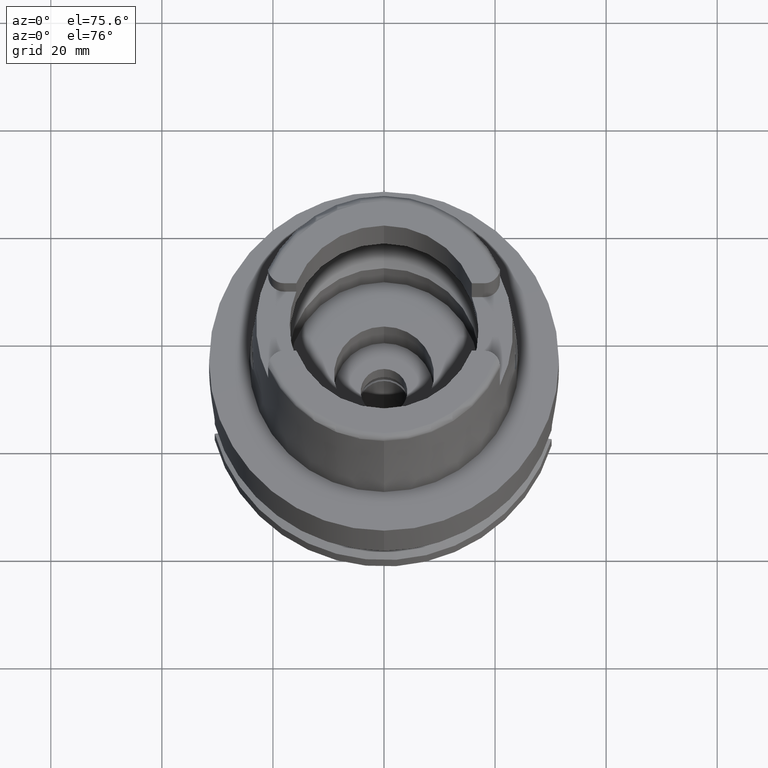
[diagram: clean part render]
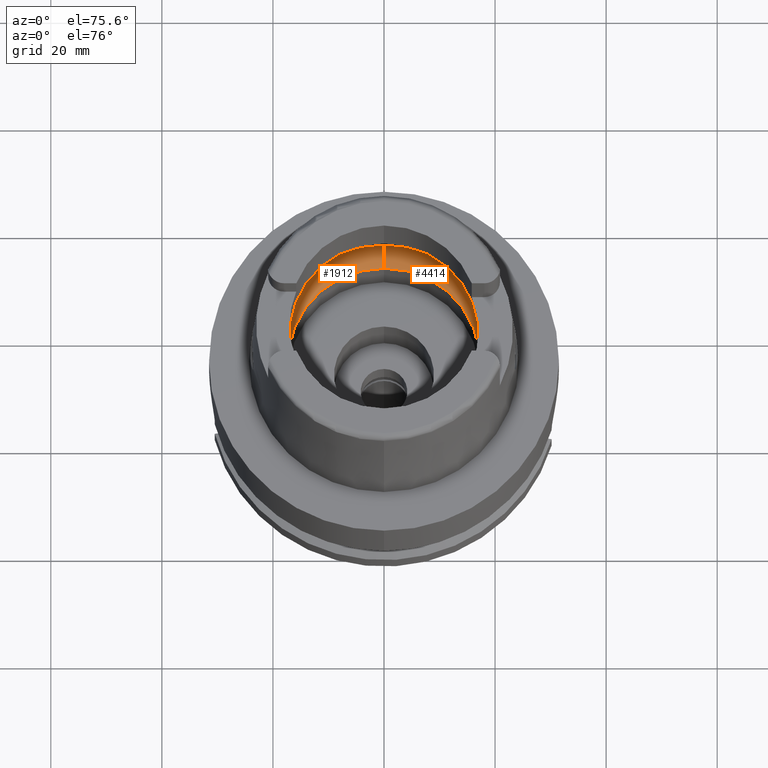
[diagram: same view with one multi-face feature highlighted, each face labeled with its STEP entity id]
A machine part, auxiliary view. The highlighted faces form ONE feature: a constant-radius fillet chain: 2 tangent blend faces with common blend radius 8 mm. The faces share edges in the B-rep.
Their STEP definitions:
[1] entity #1912 (Torus):
#50 = CARTESIAN_POINT ( 'NONE',  ( -19.90056925889987127, -1.871018165099524122, 5.748162139564427342 ) ) ;
#74 = CARTESIAN_POINT ( 'NONE',  ( -19.84575864665999845, -2.479085262491000030, 6.186348233825000875 ) ) ;
#262 = CARTESIAN_POINT ( 'NONE',  ( -19.93655272268687639, 0.9259470818443067408, 5.364515645285496959 ) ) ;
#291 = CIRCLE ( 'NONE', #4675, 7.999999999999992895 ) ;
#303 = CARTESIAN_POINT ( 'NONE',  ( -19.92591906827003001, 1.321585501799986462, 5.490587994735173893 ) ) ;
#394 = ORIENTED_EDGE ( 'NONE', *, *, #1679, .T. ) ;
#401 = CARTESIAN_POINT ( 'NONE',  ( 0.0000000000000000000, 0.0000000000000000000, 6.186348233825000875 ) ) ;
#471 = CARTESIAN_POINT ( 'NONE',  ( -19.94501428475999916, 0.0000000000000000000, 5.250000000000000000 ) ) ;
#530 = VERTEX_POINT ( 'NONE', #2632 ) ;
#535 = CARTESIAN_POINT ( 'NONE',  ( 0.0000000000000000000, 0.0000000000000000000, 6.186348233825000875 ) ) ;
#574 = CIRCLE ( 'NONE', #1020, 20.00000000000001421 ) ;
#698 = CARTESIAN_POINT ( 'NONE',  ( -19.94501428475999916, 0.2479290550739760568, 5.249999999999999112 ) ) ;
#861 = DIRECTION ( 'NONE',  ( 0.0000000000000000000, 1.000000000000000000, 0.0000000000000000000 ) ) ;
#873 = CARTESIAN_POINT ( 'NONE',  ( -19.88059042415784816, -2.158397635262351066, 5.925190505596781065 ) ) ;
#885 = CARTESIAN_POINT ( 'NONE',  ( 0.0000000000000000000, 0.0000000000000000000, 0.1500000000000999700 ) ) ;
#899 = CARTESIAN_POINT ( 'NONE',  ( -19.94501428475999916, -0.4959087842382808309, 5.249999999999998224 ) ) ;
#912 = DIRECTION ( 'NONE',  ( 0.0000000000000000000, -0.6562500000000006661, -0.7545435292281016393 ) ) ;
#954 = CARTESIAN_POINT ( 'NONE',  ( -19.84575864665999845, -2.479085262491000030, 6.186348233825000875 ) ) ;
#979 = CARTESIAN_POINT ( 'NONE',  ( -19.91448717745985775, -1.610408095139941542, 5.612876396282293179 ) ) ;
#1020 = AXIS2_PLACEMENT_3D ( 'NONE', #4055, #3157, #1061 ) ;
#1061 = DIRECTION ( 'NONE',  ( -0.9922879323327794543, 0.1239542631244973381, 0.0000000000000000000 ) ) ;
#1246 = VERTEX_POINT ( 'NONE', #3552 ) ;
#1363 = DIRECTION ( 'NONE',  ( 0.0000000000000000000, 1.000000000000000000, 0.0000000000000000000 ) ) ;
#1381 = CARTESIAN_POINT ( 'NONE',  ( -19.92391792695806529, -1.379670552742549017, 5.512962522875360705 ) ) ;
#1403 = VERTEX_POINT ( 'NONE', #3993 ) ;
#1421 = VERTEX_POINT ( 'NONE', #4489 ) ;
#1495 = CARTESIAN_POINT ( 'NONE',  ( -19.92607492902601507, 1.316891584246879576, 5.488826718527257675 ) ) ;
#1520 = CARTESIAN_POINT ( 'NONE',  ( -19.84575864665999845, 2.479085262489999941, 6.186348233825000875 ) ) ;
#1609 = CARTESIAN_POINT ( 'NONE',  ( 0.0000000000000000000, 12.00000000000000000, 6.186348233825000875 ) ) ;
#1625 = CARTESIAN_POINT ( 'NONE',  ( 0.0000000000000000000, 20.00000000000000000, 6.186348233825000875 ) ) ;
#1679 = EDGE_CURVE ( 'NONE', #3162, #4016, #4909, .T. ) ;
#1731 = DIRECTION ( 'NONE',  ( 1.000000000000000000, 0.0000000000000000000, 0.0000000000000000000 ) ) ;
#1780 = CARTESIAN_POINT ( 'NONE',  ( -19.86454009060478398, -2.328734643576319652, 6.053875549024845704 ) ) ;
#1823 = AXIS2_PLACEMENT_3D ( 'NONE', #401, #3874, #3460 ) ;
#1835 = CIRCLE ( 'NONE', #2014, 17.25000000000000000 ) ;
#1912 = ADVANCED_FACE ( 'NONE', ( #4457 ), #4914, .F. ) ;
#2000 = CARTESIAN_POINT ( 'NONE',  ( -19.93292633894125032, 1.081457122330341747, 5.408919853929954336 ) ) ;
#2004 = ORIENTED_EDGE ( 'NONE', *, *, #4480, .F. ) ;
#2010 = CARTESIAN_POINT ( 'NONE',  ( -19.92840595086944688, 1.244192535815689116, 5.462252019518305524 ) ) ;
#2014 = AXIS2_PLACEMENT_3D ( 'NONE', #885, #5629, #861 ) ;
#2098 = EDGE_CURVE ( 'NONE', #2209, #1403, #2726, .T. ) ;
#2209 = VERTEX_POINT ( 'NONE', #954 ) ;
#2214 = CARTESIAN_POINT ( 'NONE',  ( -19.92518025587951058, -1.343452463015866627, 5.498900748199903710 ) ) ;
#2420 = CARTESIAN_POINT ( 'NONE',  ( -19.94340255865083833, 0.4848947565498933909, 5.274596189388688572 ) ) ;
#2435 = EDGE_CURVE ( 'NONE', #1403, #530, #5597, .T. ) ;
#2632 = CARTESIAN_POINT ( 'NONE',  ( -19.84575864665999845, 2.479085262489999941, 6.186348233825000875 ) ) ;
#2686 = ORIENTED_EDGE ( 'NONE', *, *, #2098, .F. ) ;
#2726 = B_SPLINE_CURVE_WITH_KNOTS ( 'NONE', 3,
 ( #74, #1780, #873, #50, #4787, #979, #4360, #4837, #1381, #4394, #2214, #3103, #3533, #899, #471 ),
 .UNSPECIFIED., .F., .F.,
 ( 4, 2, 2, 1, 1, 1, 2, 2, 4 ),
 ( 0.0000000000000000000, 0.2499999999999957812, 0.3749999999999935607, 0.4374999999999926725, 0.4687499999999921729, 0.4843749999999920064, 0.4921874999999919509, 0.4999999999999920064, 1.000000000000000000 ),
 .UNSPECIFIED. ) ;
#3103 = CARTESIAN_POINT ( 'NONE',  ( -19.92547252417883641, -1.334867513091082314, 5.495621353218018257 ) ) ;
#3157 = DIRECTION ( 'NONE',  ( 0.0000000000000000000, 0.0000000000000000000, -1.000000000000000000 ) ) ;
#3162 = VERTEX_POINT ( 'NONE', #3764 ) ;
#3283 = ORIENTED_EDGE ( 'NONE', *, *, #4924, .F. ) ;
#3294 = EDGE_LOOP ( 'NONE', ( #3461, #2004, #4304, #394, #3283, #4295, #2686 ) ) ;
#3329 = CARTESIAN_POINT ( 'NONE',  ( -19.94501428475999916, 0.0000000000000000000, 5.250000000000000000 ) ) ;
#3460 = DIRECTION ( 'NONE',  ( 0.0000000000000000000, -1.000000000000000000, 0.0000000000000000000 ) ) ;
#3461 = ORIENTED_EDGE ( 'NONE', *, *, #3463, .F. ) ;
#3463 = EDGE_CURVE ( 'NONE', #1421, #2209, #4099, .T. ) ;
#3533 = CARTESIAN_POINT ( 'NONE',  ( -19.93856751838270824, -0.9457802407118157673, 5.348172554885747054 ) ) ;
#3541 = DIRECTION ( 'NONE',  ( 0.0000000000000000000, 0.0000000000000000000, 1.000000000000000000 ) ) ;
#3552 = CARTESIAN_POINT ( 'NONE',  ( 0.0000000000000000000, -17.25000000000000000, 0.1500000000000999700 ) ) ;
#3693 = CARTESIAN_POINT ( 'NONE',  ( 0.0000000000000000000, -12.00000000000000000, 6.186348233825000875 ) ) ;
#3746 = CARTESIAN_POINT ( 'NONE',  ( -19.93096204774570879, 1.157762075072081620, 5.432521242665883321 ) ) ;
#3764 = CARTESIAN_POINT ( 'NONE',  ( 0.0000000000000000000, 17.25000000000000000, 0.1500000000000999700 ) ) ;
#3874 = DIRECTION ( 'NONE',  ( 0.0000000000000000000, 0.0000000000000000000, -1.000000000000000000 ) ) ;
#3993 = CARTESIAN_POINT ( 'NONE',  ( -19.94501428475999916, 0.0000000000000000000, 5.250000000000000000 ) ) ;
#4016 = VERTEX_POINT ( 'NONE', #1625 ) ;
#4055 = CARTESIAN_POINT ( 'NONE',  ( 0.0000000000000000000, 0.0000000000000000000, 6.186348233825000875 ) ) ;
#4089 = CARTESIAN_POINT ( 'NONE',  ( -19.92647156474819425, 1.304855687904770578, 5.484336066838738866 ) ) ;
#4099 = CIRCLE ( 'NONE', #1823, 20.00000000000000000 ) ;
#4168 = CARTESIAN_POINT ( 'NONE',  ( -19.93856738032333809, 0.8183990517462441661, 5.338642722792194206 ) ) ;
#4295 = ORIENTED_EDGE ( 'NONE', *, *, #2435, .F. ) ;
#4298 = EDGE_CURVE ( 'NONE', #3162, #1246, #1835, .T. ) ;
#4304 = ORIENTED_EDGE ( 'NONE', *, *, #4298, .F. ) ;
#4360 = CARTESIAN_POINT ( 'NONE',  ( -19.91820167814924503, -1.528670811425639542, 5.574773783465068355 ) ) ;
#4394 = CARTESIAN_POINT ( 'NONE',  ( -19.92467852483092017, -1.357963622241911139, 5.504503570019525505 ) ) ;
#4408 = DIRECTION ( 'NONE',  ( -1.000000000000000000, 0.0000000000000000000, 0.0000000000000000000 ) ) ;
#4457 = FACE_OUTER_BOUND ( 'NONE', #3294, .T. ) ;
#4467 = AXIS2_PLACEMENT_3D ( 'NONE', #535, #3541, #1363 ) ;
#4480 = EDGE_CURVE ( 'NONE', #1246, #1421, #291, .T. ) ;
#4489 = CARTESIAN_POINT ( 'NONE',  ( 0.0000000000000000000, -20.00000000000000000, 6.186348233825000875 ) ) ;
#4618 = CARTESIAN_POINT ( 'NONE',  ( -19.90996177496829489, 1.795767083468379210, 5.670284047755099088 ) ) ;
#4675 = AXIS2_PLACEMENT_3D ( 'NONE', #3693, #4408, #912 ) ;
#4787 = CARTESIAN_POINT ( 'NONE',  ( -19.90654609288262122, -1.769936306168619966, 5.691842260241858575 ) ) ;
#4837 = CARTESIAN_POINT ( 'NONE',  ( -19.92208718948823076, -1.429900174883156350, 5.533077591732342704 ) ) ;
#4909 = CIRCLE ( 'NONE', #5091, 7.999999999999992895 ) ;
#4914 = TOROIDAL_SURFACE ( 'NONE', #4467, 12.00000000000000000, 8.000000000000000000 ) ;
#4924 = EDGE_CURVE ( 'NONE', #530, #4016, #574, .T. ) ;
#4988 = CARTESIAN_POINT ( 'NONE',  ( -19.88332346670495809, 2.178368557155442531, 5.921389235933154360 ) ) ;
#5091 = AXIS2_PLACEMENT_3D ( 'NONE', #1609, #1731, #5107 ) ;
#5107 = DIRECTION ( 'NONE',  ( 0.0000000000000000000, 0.6562500000000006661, -0.7545435292281016393 ) ) ;
#5476 = CARTESIAN_POINT ( 'NONE',  ( -19.92706179647762355, 1.286754988675302247, 5.477635449957110048 ) ) ;
#5597 = B_SPLINE_CURVE_WITH_KNOTS ( 'NONE', 3,
 ( #3329, #698, #2420, #4168, #262, #2000, #3746, #2010, #5476, #4089, #1495, #303, #4618, #4988, #1520 ),
 .UNSPECIFIED., .F., .F.,
 ( 4, 2, 2, 1, 1, 1, 2, 2, 4 ),
 ( 0.0000000000000000000, 0.2499999999999942268, 0.3749999999999913958, 0.4374999999999900635, 0.4687499999999894529, 0.4843749999999892863, 0.4921874999999892308, 0.4999999999999892308, 1.000000000000000000 ),
 .UNSPECIFIED. ) ;
#5629 = DIRECTION ( 'NONE',  ( 0.0000000000000000000, 0.0000000000000000000, 1.000000000000000000 ) ) ;
[2] entity #4414 (Torus):
#54 = ORIENTED_EDGE ( 'NONE', *, *, #4880, .F. ) ;
#60 = CARTESIAN_POINT ( 'NONE',  ( 19.91448735469504427, 1.610406046188481932, 5.612875421313382240 ) ) ;
#75 = DIRECTION ( 'NONE',  ( 0.0000000000000000000, 0.0000000000000000000, -1.000000000000000000 ) ) ;
#90 = CARTESIAN_POINT ( 'NONE',  ( 19.93292623496137494, -1.081458060797942489, 5.408920133523466234 ) ) ;
#238 = CARTESIAN_POINT ( 'NONE',  ( 19.94501428475999916, 0.0000000000000000000, 5.250000000000000000 ) ) ;
#291 = CIRCLE ( 'NONE', #4675, 7.999999999999992895 ) ;
#378 = CARTESIAN_POINT ( 'NONE',  ( 0.0000000000000000000, 0.0000000000000000000, 0.1500000000000999700 ) ) ;
#572 = CARTESIAN_POINT ( 'NONE',  ( 19.93856732486741024, -0.8183991276165779594, 5.338642733814154440 ) ) ;
#677 = CARTESIAN_POINT ( 'NONE',  ( 19.91820185418519884, 1.528668694906667236, 5.574772838317966439 ) ) ;
#798 = ORIENTED_EDGE ( 'NONE', *, *, #4042, .F. ) ;
#912 = DIRECTION ( 'NONE',  ( 0.0000000000000000000, -0.6562500000000006661, -0.7545435292281016393 ) ) ;
#941 = CARTESIAN_POINT ( 'NONE',  ( 19.90654626797081761, 1.769934426146181128, 5.691841251131339874 ) ) ;
#965 = CARTESIAN_POINT ( 'NONE',  ( 19.94501428475999560, 0.4959095983523816309, 5.249999999999999112 ) ) ;
#968 = CARTESIAN_POINT ( 'NONE',  ( 19.92706164205126385, -1.286756906106516940, 5.477636149942417987 ) ) ;
#1053 = CARTESIAN_POINT ( 'NONE',  ( 19.92840580800542583, -1.244194224745405863, 5.462252611686061243 ) ) ;
#1081 = CARTESIAN_POINT ( 'NONE',  ( 19.94501428475999916, 0.0000000000000000000, 5.250000000000000000 ) ) ;
#1246 = VERTEX_POINT ( 'NONE', #3552 ) ;
#1284 = ORIENTED_EDGE ( 'NONE', *, *, #2764, .F. ) ;
#1409 = DIRECTION ( 'NONE',  ( 0.0000000000000000000, 0.0000000000000000000, -1.000000000000000000 ) ) ;
#1421 = VERTEX_POINT ( 'NONE', #4489 ) ;
#1425 = ORIENTED_EDGE ( 'NONE', *, *, #4480, .T. ) ;
#1477 = VERTEX_POINT ( 'NONE', #1081 ) ;
#1572 = ORIENTED_EDGE ( 'NONE', *, *, #1679, .F. ) ;
#1609 = CARTESIAN_POINT ( 'NONE',  ( 0.0000000000000000000, 12.00000000000000000, 6.186348233825000875 ) ) ;
#1625 = CARTESIAN_POINT ( 'NONE',  ( 0.0000000000000000000, 20.00000000000000000, 6.186348233825000875 ) ) ;
#1679 = EDGE_CURVE ( 'NONE', #3162, #4016, #4909, .T. ) ;
#1731 = DIRECTION ( 'NONE',  ( 1.000000000000000000, 0.0000000000000000000, 0.0000000000000000000 ) ) ;
#1821 = CARTESIAN_POINT ( 'NONE',  ( 19.88332331094866490, -2.178369804041490276, 5.921390334554123669 ) ) ;
#1860 = CARTESIAN_POINT ( 'NONE',  ( 0.0000000000000000000, 0.0000000000000000000, 6.186348233825000875 ) ) ;
#1874 = CARTESIAN_POINT ( 'NONE',  ( 19.90996156375606674, -1.795769246985481571, 5.670285195732481576 ) ) ;
#2192 = FACE_OUTER_BOUND ( 'NONE', #4585, .T. ) ;
#2279 = CARTESIAN_POINT ( 'NONE',  ( 19.84575864665999845, -2.479085262491000030, 6.186348233825000875 ) ) ;
#2374 = CARTESIAN_POINT ( 'NONE',  ( 19.90056942649606597, 1.871016442818389525, 5.748161141865908874 ) ) ;
#2568 = DIRECTION ( 'NONE',  ( 0.0000000000000000000, 1.000000000000000000, 0.0000000000000000000 ) ) ;
#2647 = CIRCLE ( 'NONE', #3559, 20.00000000000000000 ) ;
#2655 = CARTESIAN_POINT ( 'NONE',  ( 19.93856757259323231, 0.9457801821284733679, 5.348172806034195759 ) ) ;
#2670 = CIRCLE ( 'NONE', #3751, 17.25000000000000000 ) ;
#2714 = CARTESIAN_POINT ( 'NONE',  ( 19.93655264990096398, -0.9259474478404787767, 5.364515726543497287 ) ) ;
#2721 = DIRECTION ( 'NONE',  ( 0.9922879323327794543, -0.1239542631244973381, 0.0000000000000000000 ) ) ;
#2764 = EDGE_CURVE ( 'NONE', #4016, #3766, #2647, .T. ) ;
#2815 = CARTESIAN_POINT ( 'NONE',  ( 19.92607476611066630, -1.316893670248203696, 5.488827500829480677 ) ) ;
#2832 = CARTESIAN_POINT ( 'NONE',  ( 19.88059055109615159, 2.158396495719459462, 5.925189677144884648 ) ) ;
#2927 = CIRCLE ( 'NONE', #3657, 20.00000000000001421 ) ;
#3063 = DIRECTION ( 'NONE',  ( 0.0000000000000000000, -1.000000000000000000, 0.0000000000000000000 ) ) ;
#3068 = DIRECTION ( 'NONE',  ( 0.0000000000000000000, 1.000000000000000000, 0.0000000000000000000 ) ) ;
#3104 = CARTESIAN_POINT ( 'NONE',  ( 0.0000000000000000000, 0.0000000000000000000, 6.186348233825000875 ) ) ;
#3111 = EDGE_CURVE ( 'NONE', #1477, #3390, #3341, .T. ) ;
#3148 = CARTESIAN_POINT ( 'NONE',  ( 19.93096192686909518, -1.157763334012747114, 5.432521644578194753 ) ) ;
#3162 = VERTEX_POINT ( 'NONE', #3764 ) ;
#3252 = CARTESIAN_POINT ( 'NONE',  ( 19.92647140524467630, -1.304857706103421222, 5.484336815834931045 ) ) ;
#3304 = CARTESIAN_POINT ( 'NONE',  ( 19.92391809393505397, 1.379668374353000937, 5.512961660982391265 ) ) ;
#3341 = B_SPLINE_CURVE_WITH_KNOTS ( 'NONE', 3,
 ( #4517, #4912, #4021, #572, #2714, #90, #3148, #1053, #968, #3252, #2815, #4049, #1874, #1821, #2279 ),
 .UNSPECIFIED., .F., .F.,
 ( 4, 2, 2, 1, 1, 1, 2, 2, 4 ),
 ( 0.0000000000000000000, 0.2499999999999947820, 0.3749999999999921174, 0.4374999999999906186, 0.4687499999999900080, 0.4843749999999897859, 0.4921874999999896194, 0.4999999999999894529, 1.000000000000000000 ),
 .UNSPECIFIED. ) ;
#3390 = VERTEX_POINT ( 'NONE', #3542 ) ;
#3436 = CARTESIAN_POINT ( 'NONE',  ( 0.0000000000000000000, 0.0000000000000000000, 6.186348233825000875 ) ) ;
#3474 = DIRECTION ( 'NONE',  ( 0.0000000000000000000, 0.0000000000000000000, 1.000000000000000000 ) ) ;
#3481 = CARTESIAN_POINT ( 'NONE',  ( 19.84575864665999845, 2.479085262491000030, 6.186348233825000875 ) ) ;
#3542 = CARTESIAN_POINT ( 'NONE',  ( 19.84575864665999845, -2.479085262491000030, 6.186348233825000875 ) ) ;
#3544 = CARTESIAN_POINT ( 'NONE',  ( 19.92547268850448816, 1.334865291962832767, 5.495620507227335416 ) ) ;
#3552 = CARTESIAN_POINT ( 'NONE',  ( 0.0000000000000000000, -17.25000000000000000, 0.1500000000000999700 ) ) ;
#3559 = AXIS2_PLACEMENT_3D ( 'NONE', #3104, #75, #3068 ) ;
#3595 = CARTESIAN_POINT ( 'NONE',  ( 19.92208736014775994, 1.429898011590186924, 5.533076699460339754 ) ) ;
#3657 = AXIS2_PLACEMENT_3D ( 'NONE', #1860, #1409, #2721 ) ;
#3693 = CARTESIAN_POINT ( 'NONE',  ( 0.0000000000000000000, -12.00000000000000000, 6.186348233825000875 ) ) ;
#3751 = AXIS2_PLACEMENT_3D ( 'NONE', #378, #3474, #3063 ) ;
#3758 = B_SPLINE_CURVE_WITH_KNOTS ( 'NONE', 3,
 ( #3850, #5604, #2832, #2374, #941, #60, #677, #3595, #3304, #5339, #3991, #3544, #2655, #965, #238 ),
 .UNSPECIFIED., .F., .F.,
 ( 4, 2, 2, 1, 1, 1, 2, 2, 4 ),
 ( 0.0000000000000000000, 0.2500000000000033862, 0.3750000000000049405, 0.4375000000000056621, 0.4687500000000057176, 0.4843750000000056621, 0.4921875000000054956, 0.5000000000000053291, 1.000000000000000000 ),
 .UNSPECIFIED. ) ;
#3764 = CARTESIAN_POINT ( 'NONE',  ( 0.0000000000000000000, 17.25000000000000000, 0.1500000000000999700 ) ) ;
#3766 = VERTEX_POINT ( 'NONE', #3481 ) ;
#3850 = CARTESIAN_POINT ( 'NONE',  ( 19.84575864665999845, 2.479085262491000030, 6.186348233825000875 ) ) ;
#3980 = ORIENTED_EDGE ( 'NONE', *, *, #4479, .F. ) ;
#3991 = CARTESIAN_POINT ( 'NONE',  ( 19.92518041982365418, 1.343450277255565872, 5.498899909475031045 ) ) ;
#4016 = VERTEX_POINT ( 'NONE', #1625 ) ;
#4021 = CARTESIAN_POINT ( 'NONE',  ( 19.94340254478684926, -0.4848942647184917298, 5.274596102033371814 ) ) ;
#4042 = EDGE_CURVE ( 'NONE', #1246, #3162, #2670, .T. ) ;
#4049 = CARTESIAN_POINT ( 'NONE',  ( 19.92591890260291621, -1.321587656400195598, 5.490588806117743026 ) ) ;
#4110 = AXIS2_PLACEMENT_3D ( 'NONE', #3436, #5145, #2568 ) ;
#4203 = TOROIDAL_SURFACE ( 'NONE', #4110, 12.00000000000000000, 8.000000000000000000 ) ;
#4408 = DIRECTION ( 'NONE',  ( -1.000000000000000000, 0.0000000000000000000, 0.0000000000000000000 ) ) ;
#4414 = ADVANCED_FACE ( 'NONE', ( #2192 ), #4203, .F. ) ;
#4451 = ORIENTED_EDGE ( 'NONE', *, *, #3111, .F. ) ;
#4479 = EDGE_CURVE ( 'NONE', #3766, #1477, #3758, .T. ) ;
#4480 = EDGE_CURVE ( 'NONE', #1246, #1421, #291, .T. ) ;
#4489 = CARTESIAN_POINT ( 'NONE',  ( 0.0000000000000000000, -20.00000000000000000, 6.186348233825000875 ) ) ;
#4517 = CARTESIAN_POINT ( 'NONE',  ( 19.94501428475999916, 0.0000000000000000000, 5.250000000000000000 ) ) ;
#4585 = EDGE_LOOP ( 'NONE', ( #3980, #1284, #1572, #798, #1425, #54, #4451 ) ) ;
#4675 = AXIS2_PLACEMENT_3D ( 'NONE', #3693, #4408, #912 ) ;
#4880 = EDGE_CURVE ( 'NONE', #3390, #1421, #2927, .T. ) ;
#4909 = CIRCLE ( 'NONE', #5091, 7.999999999999992895 ) ;
#4912 = CARTESIAN_POINT ( 'NONE',  ( 19.94501428475999560, -0.2479285940720863946, 5.249999999999998224 ) ) ;
#5091 = AXIS2_PLACEMENT_3D ( 'NONE', #1609, #1731, #5107 ) ;
#5107 = DIRECTION ( 'NONE',  ( 0.0000000000000000000, 0.6562500000000006661, -0.7545435292281016393 ) ) ;
#5145 = DIRECTION ( 'NONE',  ( 0.0000000000000000000, 0.0000000000000000000, 1.000000000000000000 ) ) ;
#5339 = CARTESIAN_POINT ( 'NONE',  ( 19.92467869001661995, 1.357961439187409525, 5.504502721927527986 ) ) ;
#5604 = CARTESIAN_POINT ( 'NONE',  ( 19.86454016619522989, 2.328734038445912979, 6.053875015849456531 ) ) ;